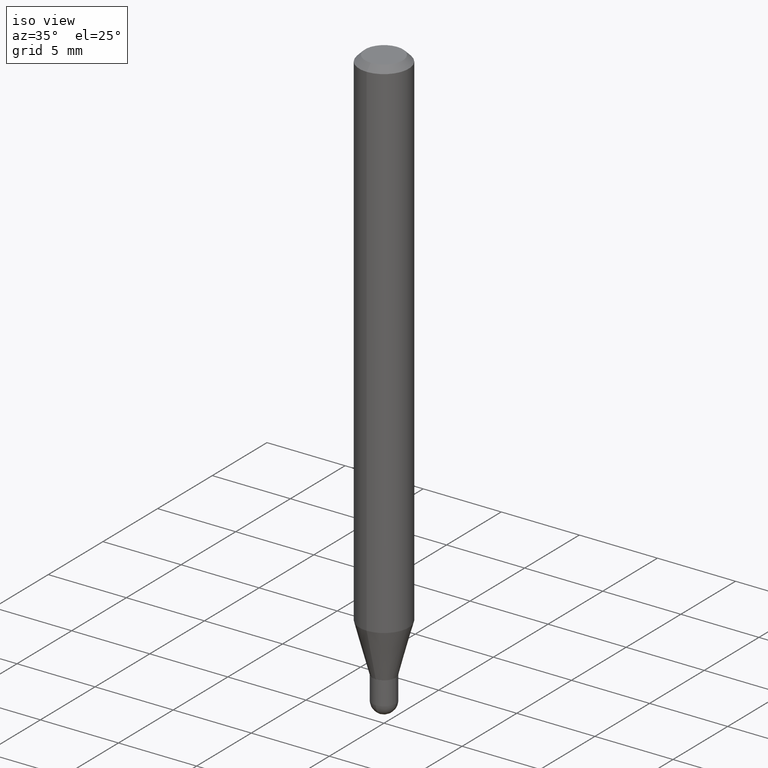
[diagram: clean part render]
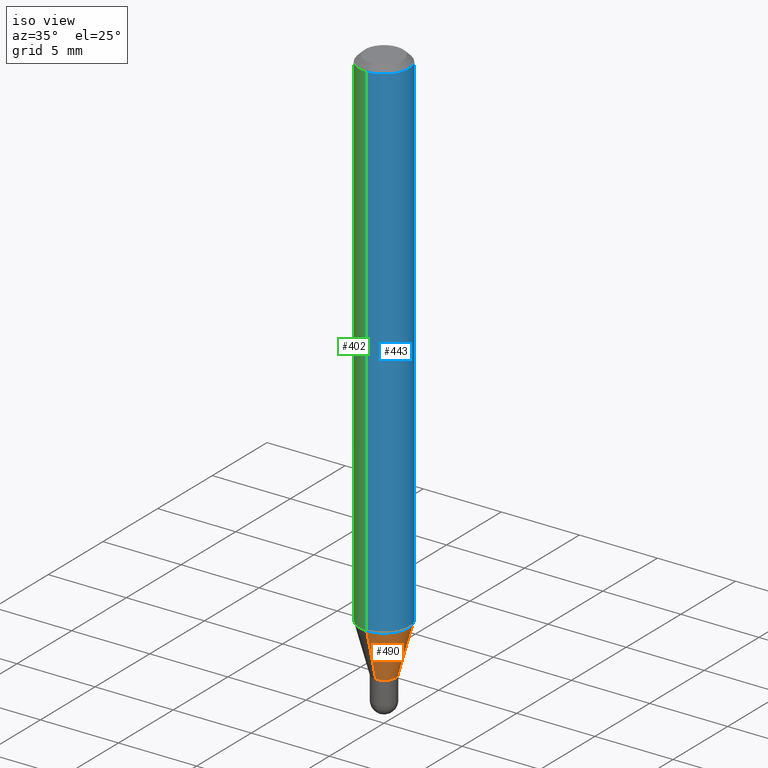
[diagram: same view with three faces highlighted in distinct colors, each labeled with its STEP entity id]
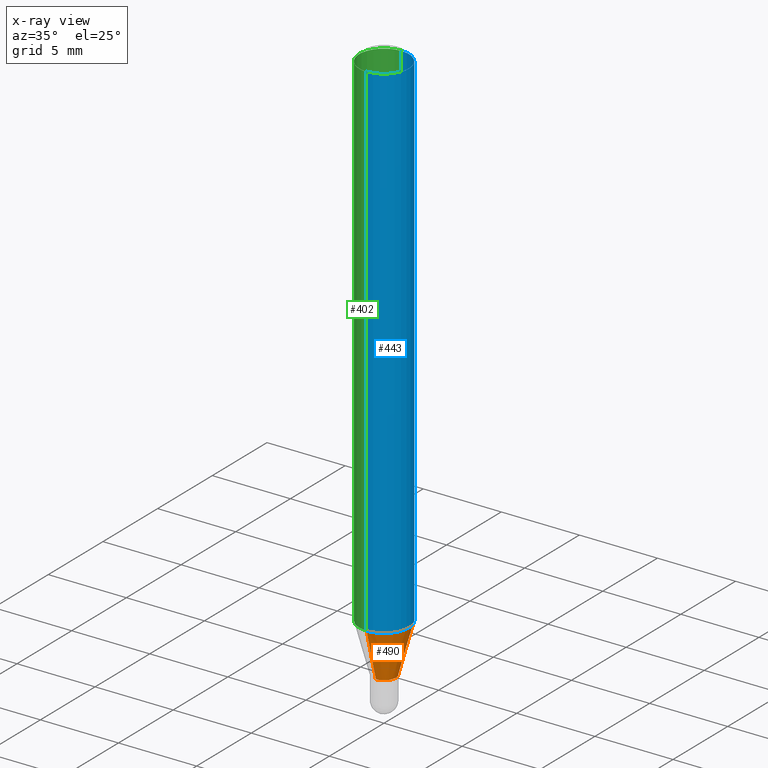
[diagram: x-ray of the same camera — body ghosted, the three highlighted faces saturated]
A machine part, iso view with three faces highlighted in distinct colors.
The next image is the same camera in x-ray (body ghosted, the three faces saturated) — at least one of them is partly hidden behind the body in this view.
Their STEP definitions:

[orange] entity #490 — the highlighted conical surface has half-angle 15 deg.
#12 = DIRECTION ( 'NONE',  ( -6.982962677686265922E-15, -1.000000000000000000, 4.370956789862821150E-15 ) ) ;
#40 = DIRECTION ( 'NONE',  ( -1.807323732225378260E-15, -0.2588190451025250693, 0.9659258262890670910 ) ) ;
#54 = ORIENTED_EDGE ( 'NONE', *, *, #159, .F. ) ;
#58 = CARTESIAN_POINT ( 'NONE',  ( 3.451799951467078440E-29, -4.928196221036497538E-15, -1.411500000000000199 ) ) ;
#79 = DIRECTION ( 'NONE',  ( -6.982962677686266711E-15, -1.000000000000000000, 0.000000000000000000 ) ) ;
#81 = CARTESIAN_POINT ( 'NONE',  ( 4.440892098500937762E-16, 0.06249999999999547584, -1.288342323350233132 ) ) ;
#85 = AXIS2_PLACEMENT_3D ( 'NONE', #128, #349, #79 ) ;
#111 = VERTEX_POINT ( 'NONE', #196 ) ;
#112 = CARTESIAN_POINT ( 'NONE',  ( -4.364351673553603615E-16, -0.06250000000000453804, -1.288342323350232688 ) ) ;
#113 = CIRCLE ( 'NONE', #85, 0.02950000000000046682 ) ;
#118 = EDGE_CURVE ( 'NONE', #111, #276, #113, .T. ) ;
#120 = DIRECTION ( 'NONE',  ( -6.982962677686266711E-15, -1.000000000000000000, 0.000000000000000000 ) ) ;
#128 = CARTESIAN_POINT ( 'NONE',  ( 3.451799951467078440E-29, -4.928196221036497538E-15, -1.411500000000000199 ) ) ;
#145 = VERTEX_POINT ( 'NONE', #81 ) ;
#157 = AXIS2_PLACEMENT_3D ( 'NONE', #405, #255, #12 ) ;
#159 = EDGE_CURVE ( 'NONE', #111, #362, #358, .T. ) ;
#170 = CARTESIAN_POINT ( 'NONE',  ( 2.096101070492673598E-16, 0.02949999999999553674, -1.411500000000000199 ) ) ;
#172 = LINE ( 'NONE', #170, #257 ) ;
#196 = CARTESIAN_POINT ( 'NONE',  ( -2.059973989917136074E-16, -0.02950000000000539691, -1.411500000000000199 ) ) ;
#212 = AXIS2_PLACEMENT_3D ( 'NONE', #58, #216, #120 ) ;
#216 = DIRECTION ( 'NONE',  ( -2.445483493777596919E-29, 3.491460305374776460E-15, 1.000000000000000000 ) ) ;
#220 = VECTOR ( 'NONE', #40, 39.37007874015748854 ) ;
#233 = EDGE_LOOP ( 'NONE', ( #357, #495, #456, #54 ) ) ;
#250 = DIRECTION ( 'NONE',  ( 1.839019923739649225E-15, 0.2588190451025318417, 0.9659258262890653146 ) ) ;
#255 = DIRECTION ( 'NONE',  ( -2.445483493777596919E-29, 3.491460305374776460E-15, 1.000000000000000000 ) ) ;
#257 = VECTOR ( 'NONE', #250, 39.37007874015748143 ) ;
#259 = FACE_OUTER_BOUND ( 'NONE', #233, .T. ) ;
#276 = VERTEX_POINT ( 'NONE', #348 ) ;
#311 = CARTESIAN_POINT ( 'NONE',  ( -2.059973989917136074E-16, -0.02950000000000539691, -1.411500000000000199 ) ) ;
#348 = CARTESIAN_POINT ( 'NONE',  ( 3.268496584496807899E-16, 0.02949999999999553674, -1.411500000000000199 ) ) ;
#349 = DIRECTION ( 'NONE',  ( -2.445483493777596919E-29, 3.491460305374776460E-15, 1.000000000000000000 ) ) ;
#357 = ORIENTED_EDGE ( 'NONE', *, *, #118, .T. ) ;
#358 = LINE ( 'NONE', #311, #220 ) ;
#362 = VERTEX_POINT ( 'NONE', #112 ) ;
#390 = EDGE_CURVE ( 'NONE', #362, #145, #432, .T. ) ;
#405 = CARTESIAN_POINT ( 'NONE',  ( 3.150619886088074445E-29, -4.498196081711653353E-15, -1.288342323350232910 ) ) ;
#432 = CIRCLE ( 'NONE', #157, 0.06250000000000000000 ) ;
#456 = ORIENTED_EDGE ( 'NONE', *, *, #390, .F. ) ;
#468 = EDGE_CURVE ( 'NONE', #276, #145, #172, .T. ) ;
#490 = ADVANCED_FACE ( 'NONE', ( #259 ), #498, .T. ) ;
#495 = ORIENTED_EDGE ( 'NONE', *, *, #468, .T. ) ;
#498 = CONICAL_SURFACE ( 'NONE', #212, 0.02950000000000046682, 0.2617993877991574014 ) ;

[blue] entity #443 — the highlighted cylindrical surface (edge-blend (fillet) strip) has radius 1.5875 mm, axis along (-0, 0, 1).
#8 = CARTESIAN_POINT ( 'NONE',  ( 3.668225240666411791E-31, -5.237190458062187369E-17, -0.01500000000000006710 ) ) ;
#12 = DIRECTION ( 'NONE',  ( -6.982962677686265922E-15, -1.000000000000000000, 4.370956789862821150E-15 ) ) ;
#26 = CARTESIAN_POINT ( 'NONE',  ( -4.364351673553916201E-16, -0.06250000000000000000, 2.182162690859235287E-16 ) ) ;
#32 = DIRECTION ( 'NONE',  ( -2.445483493777596919E-29, 3.491460305374776065E-15, 1.000000000000000000 ) ) ;
#50 = EDGE_CURVE ( 'NONE', #386, #277, #507, .T. ) ;
#64 = VECTOR ( 'NONE', #32, 39.37007874015748143 ) ;
#69 = DIRECTION ( 'NONE',  ( -2.445483493777596919E-29, 3.491460305374776460E-15, 1.000000000000000000 ) ) ;
#74 = CARTESIAN_POINT ( 'NONE',  ( 4.440892098500942692E-16, 0.06249999999999995143, -0.01500000000000028394 ) ) ;
#81 = CARTESIAN_POINT ( 'NONE',  ( 4.440892098500937762E-16, 0.06249999999999547584, -1.288342323350233132 ) ) ;
#101 = EDGE_CURVE ( 'NONE', #145, #277, #425, .T. ) ;
#103 = VECTOR ( 'NONE', #369, 39.37007874015748143 ) ;
#108 = CYLINDRICAL_SURFACE ( 'NONE', #335, 0.06250000000000000000 ) ;
#112 = CARTESIAN_POINT ( 'NONE',  ( -4.364351673553603615E-16, -0.06250000000000453804, -1.288342323350232688 ) ) ;
#145 = VERTEX_POINT ( 'NONE', #81 ) ;
#155 = ORIENTED_EDGE ( 'NONE', *, *, #50, .F. ) ;
#157 = AXIS2_PLACEMENT_3D ( 'NONE', #405, #255, #12 ) ;
#177 = EDGE_LOOP ( 'NONE', ( #293, #313, #155, #447 ) ) ;
#192 = FACE_OUTER_BOUND ( 'NONE', #177, .T. ) ;
#200 = AXIS2_PLACEMENT_3D ( 'NONE', #8, #396, #360 ) ;
#255 = DIRECTION ( 'NONE',  ( -2.445483493777596919E-29, 3.491460305374776460E-15, 1.000000000000000000 ) ) ;
#262 = CARTESIAN_POINT ( 'NONE',  ( 0.000000000000000000, 0.000000000000000000, 0.000000000000000000 ) ) ;
#277 = VERTEX_POINT ( 'NONE', #74 ) ;
#281 = CARTESIAN_POINT ( 'NONE',  ( -4.364351673553912750E-16, -0.06250000000000005551, -0.01499999999999984852 ) ) ;
#283 = CARTESIAN_POINT ( 'NONE',  ( 4.440892098500625669E-16, 0.06250000000000000000, -2.182162690859235287E-16 ) ) ;
#293 = ORIENTED_EDGE ( 'NONE', *, *, #390, .T. ) ;
#313 = ORIENTED_EDGE ( 'NONE', *, *, #101, .T. ) ;
#335 = AXIS2_PLACEMENT_3D ( 'NONE', #262, #69, #489 ) ;
#360 = DIRECTION ( 'NONE',  ( -6.982962677686265922E-15, -1.000000000000000000, 3.483106191921935554E-15 ) ) ;
#362 = VERTEX_POINT ( 'NONE', #112 ) ;
#369 = DIRECTION ( 'NONE',  ( -2.445483493777596919E-29, 3.491460305374776065E-15, 1.000000000000000000 ) ) ;
#381 = LINE ( 'NONE', #26, #103 ) ;
#386 = VERTEX_POINT ( 'NONE', #281 ) ;
#390 = EDGE_CURVE ( 'NONE', #362, #145, #432, .T. ) ;
#396 = DIRECTION ( 'NONE',  ( -2.445483493777596919E-29, 3.491460305374776460E-15, 1.000000000000000000 ) ) ;
#405 = CARTESIAN_POINT ( 'NONE',  ( 3.150619886088074445E-29, -4.498196081711653353E-15, -1.288342323350232910 ) ) ;
#425 = LINE ( 'NONE', #283, #64 ) ;
#432 = CIRCLE ( 'NONE', #157, 0.06250000000000000000 ) ;
#443 = ADVANCED_FACE ( 'NONE', ( #192 ), #108, .T. ) ;
#447 = ORIENTED_EDGE ( 'NONE', *, *, #455, .F. ) ;
#455 = EDGE_CURVE ( 'NONE', #362, #386, #381, .T. ) ;
#489 = DIRECTION ( 'NONE',  ( -6.982962677686265922E-15, -1.000000000000000000, 3.491460305374776460E-15 ) ) ;
#507 = CIRCLE ( 'NONE', #200, 0.06250000000000000000 ) ;

[green] entity #402 — the highlighted cylindrical surface (edge-blend (fillet) strip) has radius 1.5875 mm, axis along (-0, 0, 1).
#2 = ORIENTED_EDGE ( 'NONE', *, *, #370, .T. ) ;
#17 = EDGE_LOOP ( 'NONE', ( #25, #2, #331, #28 ) ) ;
#25 = ORIENTED_EDGE ( 'NONE', *, *, #101, .F. ) ;
#26 = CARTESIAN_POINT ( 'NONE',  ( -4.364351673553916201E-16, -0.06250000000000000000, 2.182162690859235287E-16 ) ) ;
#28 = ORIENTED_EDGE ( 'NONE', *, *, #368, .F. ) ;
#32 = DIRECTION ( 'NONE',  ( -2.445483493777596919E-29, 3.491460305374776065E-15, 1.000000000000000000 ) ) ;
#43 = DIRECTION ( 'NONE',  ( -6.982962677686265922E-15, -1.000000000000000000, 3.491460305374776460E-15 ) ) ;
#64 = VECTOR ( 'NONE', #32, 39.37007874015748143 ) ;
#74 = CARTESIAN_POINT ( 'NONE',  ( 4.440892098500942692E-16, 0.06249999999999995143, -0.01500000000000028394 ) ) ;
#81 = CARTESIAN_POINT ( 'NONE',  ( 4.440892098500937762E-16, 0.06249999999999547584, -1.288342323350233132 ) ) ;
#88 = CARTESIAN_POINT ( 'NONE',  ( 0.000000000000000000, 0.000000000000000000, 0.000000000000000000 ) ) ;
#91 = AXIS2_PLACEMENT_3D ( 'NONE', #448, #94, #470 ) ;
#94 = DIRECTION ( 'NONE',  ( -2.445483493777596919E-29, 3.491460305374776460E-15, 1.000000000000000000 ) ) ;
#101 = EDGE_CURVE ( 'NONE', #145, #277, #425, .T. ) ;
#103 = VECTOR ( 'NONE', #369, 39.37007874015748143 ) ;
#109 = DIRECTION ( 'NONE',  ( -2.445483493777596919E-29, 3.491460305374776460E-15, 1.000000000000000000 ) ) ;
#112 = CARTESIAN_POINT ( 'NONE',  ( -4.364351673553603615E-16, -0.06250000000000453804, -1.288342323350232688 ) ) ;
#122 = CARTESIAN_POINT ( 'NONE',  ( 3.668225240666411791E-31, -5.237190458062187369E-17, -0.01500000000000006710 ) ) ;
#129 = AXIS2_PLACEMENT_3D ( 'NONE', #88, #208, #43 ) ;
#139 = AXIS2_PLACEMENT_3D ( 'NONE', #122, #109, #354 ) ;
#145 = VERTEX_POINT ( 'NONE', #81 ) ;
#147 = CIRCLE ( 'NONE', #91, 0.06250000000000000000 ) ;
#179 = CIRCLE ( 'NONE', #139, 0.06250000000000000000 ) ;
#208 = DIRECTION ( 'NONE',  ( -2.445483493777596919E-29, 3.491460305374776460E-15, 1.000000000000000000 ) ) ;
#277 = VERTEX_POINT ( 'NONE', #74 ) ;
#281 = CARTESIAN_POINT ( 'NONE',  ( -4.364351673553912750E-16, -0.06250000000000005551, -0.01499999999999984852 ) ) ;
#283 = CARTESIAN_POINT ( 'NONE',  ( 4.440892098500625669E-16, 0.06250000000000000000, -2.182162690859235287E-16 ) ) ;
#297 = FACE_OUTER_BOUND ( 'NONE', #17, .T. ) ;
#331 = ORIENTED_EDGE ( 'NONE', *, *, #455, .T. ) ;
#354 = DIRECTION ( 'NONE',  ( -6.982962677686265922E-15, -1.000000000000000000, 3.483106191921935554E-15 ) ) ;
#362 = VERTEX_POINT ( 'NONE', #112 ) ;
#368 = EDGE_CURVE ( 'NONE', #277, #386, #179, .T. ) ;
#369 = DIRECTION ( 'NONE',  ( -2.445483493777596919E-29, 3.491460305374776065E-15, 1.000000000000000000 ) ) ;
#370 = EDGE_CURVE ( 'NONE', #145, #362, #147, .T. ) ;
#381 = LINE ( 'NONE', #26, #103 ) ;
#386 = VERTEX_POINT ( 'NONE', #281 ) ;
#402 = ADVANCED_FACE ( 'NONE', ( #297 ), #471, .T. ) ;
#425 = LINE ( 'NONE', #283, #64 ) ;
#448 = CARTESIAN_POINT ( 'NONE',  ( 3.150619886088074445E-29, -4.498196081711653353E-15, -1.288342323350232910 ) ) ;
#455 = EDGE_CURVE ( 'NONE', #362, #386, #381, .T. ) ;
#470 = DIRECTION ( 'NONE',  ( -6.982962677686265922E-15, -1.000000000000000000, 4.370956789862821150E-15 ) ) ;
#471 = CYLINDRICAL_SURFACE ( 'NONE', #129, 0.06250000000000000000 ) ;